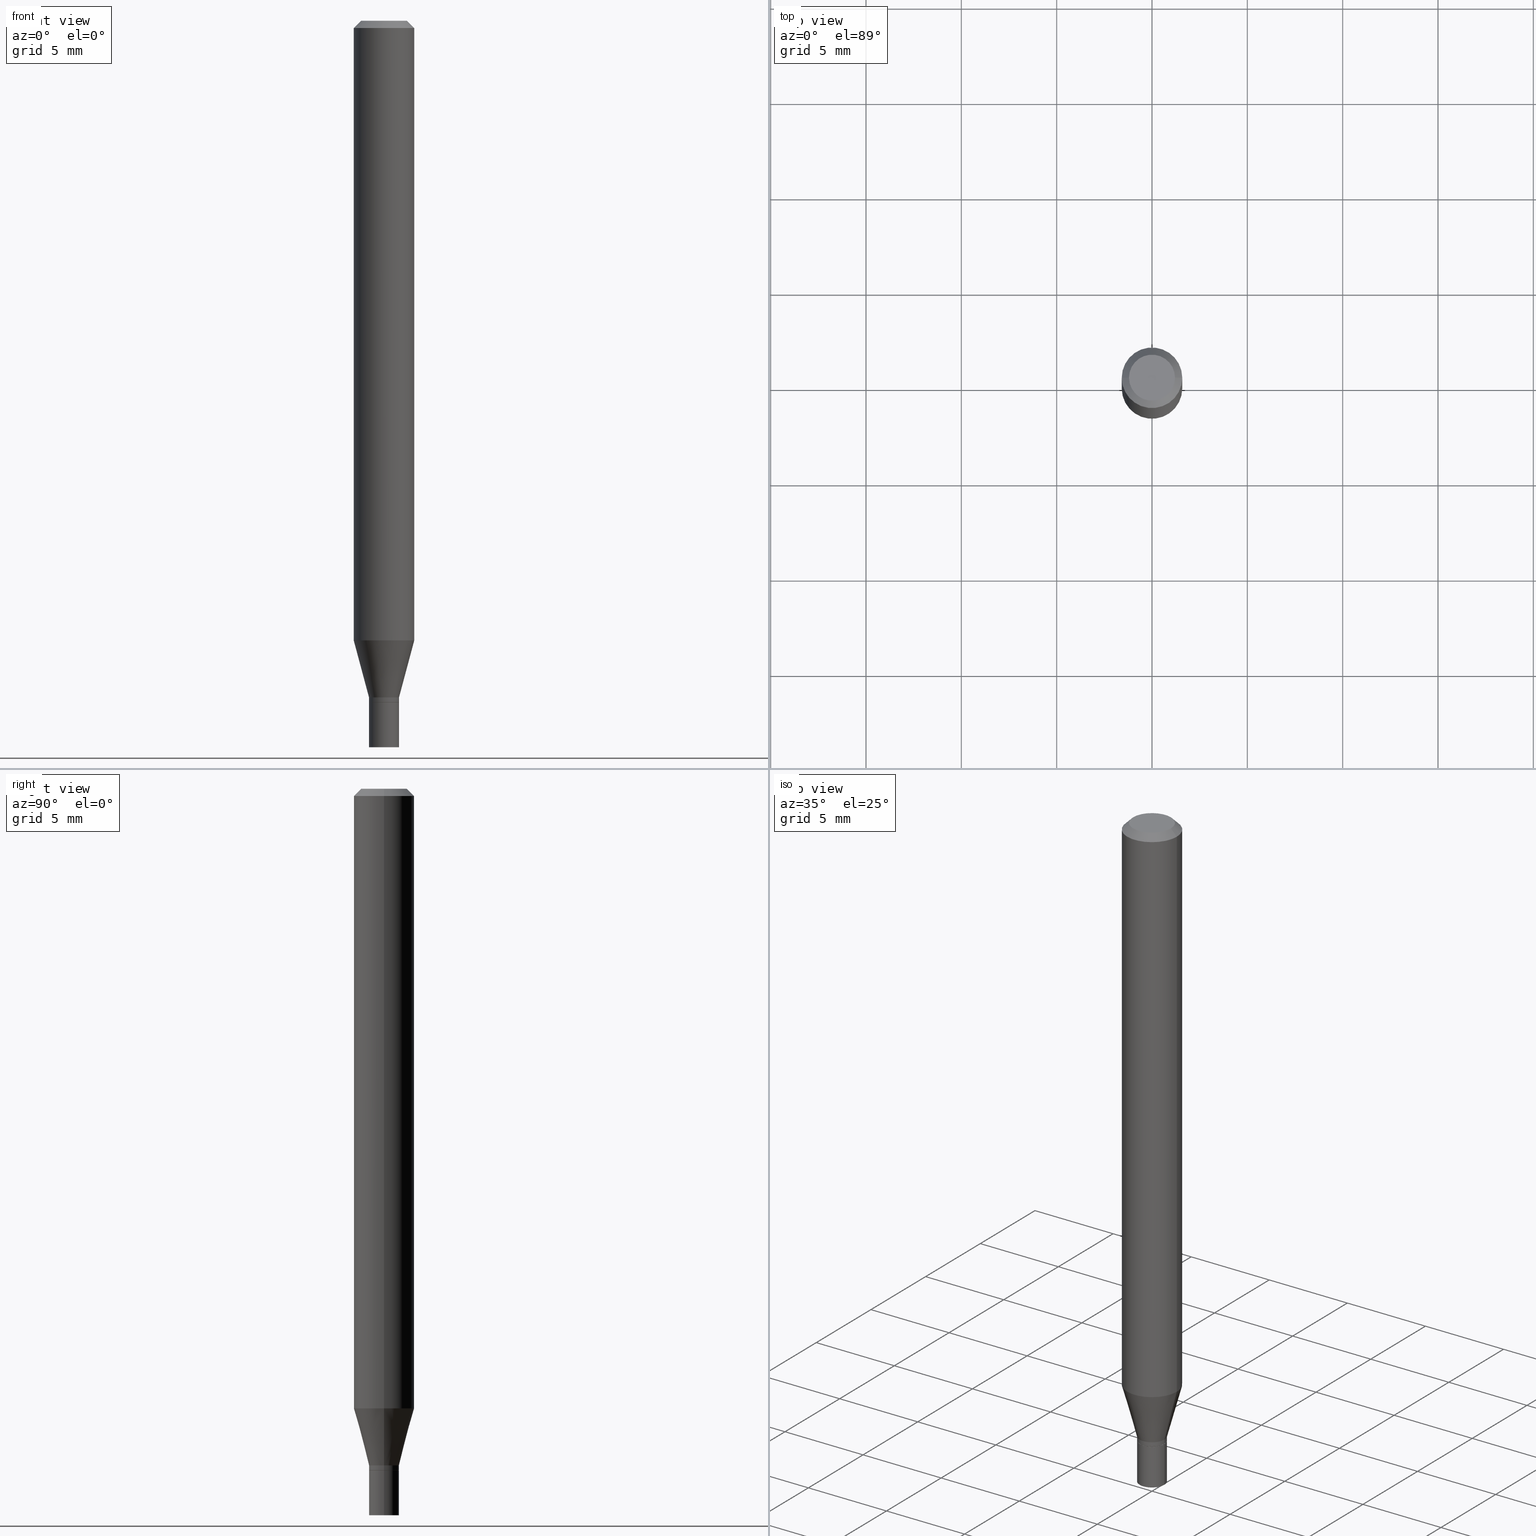
[diagram: canonical four-view strip — front | top / right | iso, engineering-drawing reading convention]
A machine part, canonical four-view strip (front | top / right | iso — engineering-drawing reading convention). The complete STEP part file that produces these views, byte-faithful:
ISO-10303-21;
HEADER;
FILE_DESCRIPTION (( 'STEP AP203' ),
    '1' );
FILE_NAME ('00357.STEP',
    '2024-03-19T21:02:44',
    ( '' ),
    ( '' ),
    'SwSTEP 2.0',
    'SolidWorks 2023',
    '' );
FILE_SCHEMA (( 'CONFIG_CONTROL_DESIGN' ));
ENDSEC;

DATA;
#1 = DIRECTION ( 'NONE',  ( 1.000000000000000000, -6.982962677686270655E-15, 0.000000000000000000 ) ) ;
#2 = CIRCLE ( 'NONE', #55, 0.03099999999999999978 ) ;
#3 = CIRCLE ( 'NONE', #168, 0.03099999999999992345 ) ;
#4 = CARTESIAN_POINT ( 'NONE',  ( 0.03049999999999999586, -5.125494605421736426E-15, -1.407000000000000028 ) ) ;
#5 = CARTESIAN_POINT ( 'NONE',  ( 0.000000000000000000, 0.000000000000000000, 0.000000000000000000 ) ) ;
#6 = ORIENTED_EDGE ( 'NONE', *, *, #276, .F. ) ;
#7 = DIRECTION ( 'NONE',  ( 1.000000000000000000, -6.982962677686265922E-15, 4.876176775795935793E-29 ) ) ;
#8 = DIRECTION ( 'NONE',  ( 1.000000000000000000, -6.982962677686262766E-15, 0.000000000000000000 ) ) ;
#9 = LOCAL_TIME ( 17, 2, 44.00000000000000000, #199 ) ;
#10 = DATE_AND_TIME ( #306, #66 ) ;
#11 = EDGE_LOOP ( 'NONE', ( #355, #203, #24, #36 ) ) ;
#12 = EDGE_CURVE ( 'NONE', #307, #347, #278, .T. ) ;
#13 = CARTESIAN_POINT ( 'NONE',  ( 0.03049999999999999586, -5.125494605421736426E-15, -1.407000000000000028 ) ) ;
#14 = PERSON_AND_ORGANIZATION_ROLE ( 'design_owner' ) ;
#15 = EDGE_LOOP ( 'NONE', ( #125, #161 ) ) ;
#16 = CYLINDRICAL_SURFACE ( 'NONE', #321, 0.03099999999999999978 ) ;
#17 = CALENDAR_DATE ( 2024, 19, 3 ) ;
#18 = VECTOR ( 'NONE', #175, 39.37007874015748143 ) ;
#19 = ORIENTED_EDGE ( 'NONE', *, *, #34, .F. ) ;
#20 = CIRCLE ( 'NONE', #230, 0.03049999999999999586 ) ;
#21 = APPROVAL_ROLE ( '' ) ;
#22 = PRODUCT_RELATED_PRODUCT_CATEGORY ( 'detail', '', ( #314 ) ) ;
#23 = DIRECTION ( 'NONE',  ( -2.445468806185136597E-29, 3.491481338843145583E-15, 1.000000000000000000 ) ) ;
#24 = ORIENTED_EDGE ( 'NONE', *, *, #367, .F. ) ;
#25 = LINE ( 'NONE', #353, #18 ) ;
#26 = PERSON ( 'UNSPECIFIED', 'UNSPECIFIED', 'UNSPECIFIED', ('UNSPECIFIED'), ('UNSPECIFIED'), ('UNSPECIFIED') ) ;
#27 = CIRCLE ( 'NONE', #91, 0.06250000000000000000 ) ;
#28 = AXIS2_PLACEMENT_3D ( 'NONE', #260, #403, #8 ) ;
#29 = EDGE_CURVE ( 'NONE', #347, #369, #102, .T. ) ;
#30 = APPLICATION_CONTEXT ( 'configuration controlled 3d designs of mechanical parts and assemblies' ) ;
#31 = FACE_OUTER_BOUND ( 'NONE', #265, .T. ) ;
#32 = CARTESIAN_POINT ( 'NONE',  ( 3.440774610302487541E-29, -4.912514243752305891E-15, -1.407000000000000028 ) ) ;
#33 = DIRECTION ( 'NONE',  ( -0.2588190451025213501, 5.211531920934551042E-15, 0.9659258262890682012 ) ) ;
#34 = EDGE_CURVE ( 'NONE', #183, #392, #210, .T. ) ;
#35 = EDGE_CURVE ( 'NONE', #371, #223, #25, .T. ) ;
#36 = ORIENTED_EDGE ( 'NONE', *, *, #53, .F. ) ;
#37 = AXIS2_PLACEMENT_3D ( 'NONE', #122, #41, #441 ) ;
#38 = LINE ( 'NONE', #4, #149 ) ;
#39 = DIRECTION ( 'NONE',  ( -2.445468806185136597E-29, 3.491481338843145583E-15, 1.000000000000000000 ) ) ;
#40 = EDGE_LOOP ( 'NONE', ( #19, #209, #61, #393 ) ) ;
#41 = DIRECTION ( 'NONE',  ( -2.445468806185136597E-29, 3.491481338843145583E-15, 1.000000000000000000 ) ) ;
#42 = VECTOR ( 'NONE', #322, 39.37007874015748143 ) ;
#43 = EDGE_CURVE ( 'NONE', #379, #392, #350, .T. ) ;
#44 = PERSON_AND_ORGANIZATION ( #26, #219 ) ;
#45 = AXIS2_PLACEMENT_3D ( 'NONE', #374, #263, #112 ) ;
#46 = DIRECTION ( 'NONE',  ( -1.000000000000000000, 6.982962677686265922E-15, -4.876176775795935793E-29 ) ) ;
#47 = VERTEX_POINT ( 'NONE', #458 ) ;
#48 = ORIENTED_EDGE ( 'NONE', *, *, #338, .T. ) ;
#49 = APPROVAL_ROLE ( '' ) ;
#50 = LINE ( 'NONE', #377, #364 ) ;
#51 = EDGE_LOOP ( 'NONE', ( #221, #166, #191, #48 ) ) ;
#52 = DIRECTION ( 'NONE',  ( 1.000000000000000000, -6.982962677686255667E-15, 0.000000000000000000 ) ) ;
#53 = EDGE_CURVE ( 'NONE', #379, #307, #318, .T. ) ;
#54 = ORIENTED_EDGE ( 'NONE', *, *, #338, .F. ) ;
#55 = AXIS2_PLACEMENT_3D ( 'NONE', #456, #360, #324 ) ;
#56 = DIRECTION ( 'NONE',  ( -2.445468806185136597E-29, 3.491481338843145583E-15, 1.000000000000000000 ) ) ;
#57 = PERSON_AND_ORGANIZATION ( #26, #219 ) ;
#58 = ORIENTED_EDGE ( 'NONE', *, *, #82, .T. ) ;
#59 = CARTESIAN_POINT ( 'NONE',  ( -0.03099999999999992345, -4.690500254997253923E-15, -1.406500000000000083 ) ) ;
#60 = CARTESIAN_POINT ( 'NONE',  ( 3.440774610302487541E-29, -4.912514243752305891E-15, -1.407000000000000028 ) ) ;
#61 = ORIENTED_EDGE ( 'NONE', *, *, #242, .T. ) ;
#62 = ORIENTED_EDGE ( 'NONE', *, *, #429, .F. ) ;
#63 = ORIENTED_EDGE ( 'NONE', *, *, #43, .F. ) ;
#64 = ADVANCED_FACE ( 'NONE', ( #291 ), #206, .T. ) ;
#65 = CONICAL_SURFACE ( 'NONE', #119, 0.06250000000000000000, 0.7853981633974401744 ) ;
#66 = LOCAL_TIME ( 17, 2, 44.00000000000000000, #453 ) ;
#67 = APPLICATION_PROTOCOL_DEFINITION ( 'international standard', 'config_control_design', 1994, #270 ) ;
#68 = DIRECTION ( 'NONE',  ( -2.445468806185136597E-29, 3.491481338843145583E-15, 1.000000000000000000 ) ) ;
#69 = CARTESIAN_POINT ( 'NONE',  ( 3.576687321579069994E-29, -5.368277968210015545E-15, -1.500000000000000222 ) ) ;
#70 = AXIS2_PLACEMENT_3D ( 'NONE', #356, #23, #460 ) ;
#71 = CIRCLE ( 'NONE', #212, 0.06250000000000000000 ) ;
#72 = DIRECTION ( 'NONE',  ( 1.000000000000000000, -6.982962677686266711E-15, 4.876176775795935793E-29 ) ) ;
#73 = APPROVAL ( #414, 'UNSPECIFIED' ) ;
#74 = FACE_OUTER_BOUND ( 'NONE', #15, .T. ) ;
#75 = EDGE_LOOP ( 'NONE', ( #389, #401, #335, #6 ) ) ;
#76 = DIRECTION ( 'NONE',  ( -2.445468806185136597E-29, 3.491481338843145583E-15, 1.000000000000000000 ) ) ;
#77 = CLOSED_SHELL ( 'NONE', ( #320, #64, #284, #178, #247, #398, #256, #213, #88, #442, #207, #465 ) ) ;
#78 = CIRCLE ( 'NONE', #396, 0.03099999999999992345 ) ;
#79 = CC_DESIGN_SECURITY_CLASSIFICATION ( #342, ( #445 ) ) ;
#80 = DIRECTION ( 'NONE',  ( -1.000000000000000000, 6.982962677686266711E-15, 0.000000000000000000 ) ) ;
#81 = DIRECTION ( 'NONE',  ( 1.000000000000000000, -6.982962677686255667E-15, 0.000000000000000000 ) ) ;
#82 = EDGE_CURVE ( 'NONE', #425, #183, #99, .T. ) ;
#83 = ORIENTED_EDGE ( 'NONE', *, *, #12, .T. ) ;
#84 = DIRECTION ( 'NONE',  ( 2.445468806185136597E-29, -3.491481338843145583E-15, -1.000000000000000000 ) ) ;
#85 = CARTESIAN_POINT ( 'NONE',  ( 0.03099999999999992345, -5.094071273372148573E-15, -1.397000000000000242 ) ) ;
#86 = ORIENTED_EDGE ( 'NONE', *, *, #132, .F. ) ;
#87 = CARTESIAN_POINT ( 'NONE',  ( 0.06250000000000000000, -4.888073874380388472E-16, -0.01499999999999999944 ) ) ;
#88 = ADVANCED_FACE ( 'NONE', ( #74 ), #323, .F. ) ;
#89 = FACE_OUTER_BOUND ( 'NONE', #234, .T. ) ;
#90 = DATE_AND_TIME ( #17, #351 ) ;
#91 = AXIS2_PLACEMENT_3D ( 'NONE', #426, #101, #461 ) ;
#92 = DIRECTION ( 'NONE',  ( -2.445468806185136597E-29, 3.491481338843145583E-15, 1.000000000000000000 ) ) ;
#93 = CIRCLE ( 'NONE', #158, 0.03099999999999999978 ) ;
#94 = PERSON_AND_ORGANIZATION_ROLE ( 'creator' ) ;
#95 = LENGTH_MEASURE_WITH_UNIT ( LENGTH_MEASURE( 0.02539999999999999897 ), #317 );
#96 = CC_DESIGN_DATE_AND_TIME_ASSIGNMENT ( #192, #329, ( #342 ) ) ;
#97 = AXIS2_PLACEMENT_3D ( 'NONE', #69, #133, #400 ) ;
#98 = CARTESIAN_POINT ( 'NONE',  ( 3.440774610302487541E-29, -4.912514243752305891E-15, -1.407000000000000028 ) ) ;
#99 = CIRCLE ( 'NONE', #462, 0.03049999999999999586 ) ;
#100 = VECTOR ( 'NONE', #150, 39.37007874015748854 ) ;
#101 = DIRECTION ( 'NONE',  ( -2.445468806185136597E-29, 3.491481338843145583E-15, 1.000000000000000000 ) ) ;
#102 = LINE ( 'NONE', #326, #423 ) ;
#103 = DIRECTION ( 'NONE',  ( -2.445468806185136597E-29, 3.491481338843145583E-15, 1.000000000000000000 ) ) ;
#104 = CONICAL_SURFACE ( 'NONE', #457, 0.06250000000000000000, 0.7853981633974401744 ) ;
#105 = LINE ( 'NONE', #137, #313 ) ;
#106 = UNCERTAINTY_MEASURE_WITH_UNIT (LENGTH_MEASURE( 1.000000000000000082E-05 ), #277, 'distance_accuracy_value', 'NONE');
#107 = ADVANCED_BREP_SHAPE_REPRESENTATION ( '00357', ( #138, #446, #182 ), #424 ) ;
#108 = ORIENTED_EDGE ( 'NONE', *, *, #132, .T. ) ;
#109 = CARTESIAN_POINT ( 'NONE',  ( -0.03049999999999999586, -4.695798709345474748E-15, -1.407000000000000028 ) ) ;
#110 = CARTESIAN_POINT ( 'NONE',  ( 0.06250000000000000000, -4.903577446586667063E-15, -1.279440399561580399 ) ) ;
#111 = AXIS2_PLACEMENT_3D ( 'NONE', #32, #358, #135 ) ;
#112 = DIRECTION ( 'NONE',  ( 1.000000000000000000, -6.982962677686266711E-15, 4.876176775795935232E-29 ) ) ;
#113 = CC_DESIGN_PERSON_AND_ORGANIZATION_ASSIGNMENT ( #208, #280, ( #153 ) ) ;
#114 = VERTEX_POINT ( 'NONE', #176 ) ;
#115 = DIRECTION ( 'NONE',  ( 0.7071067811865416886, -7.319954787623233957E-15, -0.7071067811865531239 ) ) ;
#116 = CARTESIAN_POINT ( 'NONE',  ( -0.03099999999999999978, -4.854599877922879992E-15, -1.407000000000000028 ) ) ;
#117 = ORIENTED_EDGE ( 'NONE', *, *, #145, .T. ) ;
#118 = CC_DESIGN_PERSON_AND_ORGANIZATION_ASSIGNMENT ( #449, #94, ( #445 ) ) ;
#119 = AXIS2_PLACEMENT_3D ( 'NONE', #269, #84, #80 ) ;
#120 = CIRCLE ( 'NONE', #141, 0.03099999999999992345 ) ;
#121 = EDGE_CURVE ( 'NONE', #372, #371, #444, .T. ) ;
#122 = CARTESIAN_POINT ( 'NONE',  ( 3.440774610302487541E-29, -4.912514243752305891E-15, -1.407000000000000028 ) ) ;
#123 = DIRECTION ( 'NONE',  ( 1.000000000000000000, -6.982962677686255667E-15, 0.000000000000000000 ) ) ;
#124 = MECHANICAL_CONTEXT ( 'NONE', #270, 'mechanical' ) ;
#125 = ORIENTED_EDGE ( 'NONE', *, *, #165, .T. ) ;
#126 = VERTEX_POINT ( 'NONE', #427 ) ;
#127 = DIRECTION ( 'NONE',  ( 1.000000000000000000, -6.982962677686267499E-15, 4.852736867747366768E-29 ) ) ;
#128 = EDGE_LOOP ( 'NONE', ( #266, #418 ) ) ;
#129 = VECTOR ( 'NONE', #164, 39.37007874015748143 ) ;
#130 = EDGE_CURVE ( 'NONE', #312, #223, #2, .T. ) ;
#131 = EDGE_CURVE ( 'NONE', #126, #47, #105, .T. ) ;
#132 = EDGE_CURVE ( 'NONE', #369, #432, #241, .T. ) ;
#133 = DIRECTION ( 'NONE',  ( -2.438088387897960049E-29, 3.491481338843145188E-15, 1.000000000000000000 ) ) ;
#134 = APPROVAL_PERSON_ORGANIZATION ( #447, #194, #49 ) ;
#135 = DIRECTION ( 'NONE',  ( 1.000000000000000000, -6.982962677686254089E-15, 0.000000000000000000 ) ) ;
#136 = CARTESIAN_POINT ( 'NONE',  ( 0.000000000000000000, 0.000000000000000000, 0.000000000000000000 ) ) ;
#137 = CARTESIAN_POINT ( 'NONE',  ( -0.03099999999999992345, -4.657331182278244567E-15, -1.397000000000000242 ) ) ;
#138 = MANIFOLD_SOLID_BREP ( 'Body-Move/Copy2[1]', #325 ) ;
#139 = AXIS2_PLACEMENT_3D ( 'NONE', #293, #407, #46 ) ;
#140 = ADVANCED_FACE ( 'NONE', ( #31 ), #251, .F. ) ;
#141 = AXIS2_PLACEMENT_3D ( 'NONE', #152, #300, #81 ) ;
#142 = EDGE_LOOP ( 'NONE', ( #225, #117, #408, #54 ) ) ;
#143 = DIRECTION ( 'NONE',  ( 1.000000000000000000, -6.982962677686266711E-15, 0.000000000000000000 ) ) ;
#144 = DIRECTION ( 'NONE',  ( 1.000000000000000000, -6.982962677686255667E-15, 0.000000000000000000 ) ) ;
#145 = EDGE_CURVE ( 'NONE', #47, #347, #27, .T. ) ;
#146 = LINE ( 'NONE', #330, #100 ) ;
#147 = CIRCLE ( 'NONE', #70, 0.04749999999999999362 ) ;
#148 = ORIENTED_EDGE ( 'NONE', *, *, #121, .F. ) ;
#149 = VECTOR ( 'NONE', #189, 39.37007874015748143 ) ;
#150 = DIRECTION ( 'NONE',  ( -0.7071067811865416886, 2.468850131082196713E-15, -0.7071067811865531239 ) ) ;
#151 = ORIENTED_EDGE ( 'NONE', *, *, #367, .T. ) ;
#152 = CARTESIAN_POINT ( 'NONE',  ( 3.416319922240636557E-29, -4.877599430363875031E-15, -1.397000000000000242 ) ) ;
#153 = PRODUCT_DEFINITION ( 'UNKNOWN', '', #445, #404 ) ;
#154 = EDGE_LOOP ( 'NONE', ( #255, #240, #173, #281 ) ) ;
#155 = CARTESIAN_POINT ( 'NONE',  ( 0.03099999999999999978, -5.128986086760580222E-15, -1.407000000000000028 ) ) ;
#156 = VECTOR ( 'NONE', #394, 39.37007874015747433 ) ;
#157 = CIRCLE ( 'NONE', #253, 0.04749999999999999362 ) ;
#158 = AXIS2_PLACEMENT_3D ( 'NONE', #443, #39, #1 ) ;
#159 = DIRECTION ( 'NONE',  ( -2.445468806185136597E-29, 3.491481338843145583E-15, 1.000000000000000000 ) ) ;
#160 = DATE_TIME_ROLE ( 'creation_date' ) ;
#161 = ORIENTED_EDGE ( 'NONE', *, *, #421, .T. ) ;
#162 = DIRECTION ( 'NONE',  ( -2.445468806185136877E-29, 3.491481338843145188E-15, 1.000000000000000000 ) ) ;
#163 = APPROVAL_ROLE ( '' ) ;
#164 = DIRECTION ( 'NONE',  ( -2.445468806185136877E-29, 3.491481338843145188E-15, 1.000000000000000000 ) ) ;
#165 = EDGE_CURVE ( 'NONE', #114, #227, #147, .T. ) ;
#166 = ORIENTED_EDGE ( 'NONE', *, *, #165, .F. ) ;
#167 = CONICAL_SURFACE ( 'NONE', #430, 0.03049999999999999586, 0.7853981633974739252 ) ;
#168 = AXIS2_PLACEMENT_3D ( 'NONE', #305, #159, #382 ) ;
#169 = CYLINDRICAL_SURFACE ( 'NONE', #385, 0.03099999999999992345 ) ;
#170 = EDGE_LOOP ( 'NONE', ( #365, #216, #108, #341 ) ) ;
#171 = ORIENTED_EDGE ( 'NONE', *, *, #35, .T. ) ;
#172 = DIRECTION ( 'NONE',  ( 1.000000000000000000, 0.000000000000000000, 0.000000000000000000 ) ) ;
#173 = ORIENTED_EDGE ( 'NONE', *, *, #290, .F. ) ;
#174 = CC_DESIGN_PERSON_AND_ORGANIZATION_ASSIGNMENT ( #309, #304, ( #445 ) ) ;
#175 = DIRECTION ( 'NONE',  ( -2.445468806185136877E-29, 3.491481338843145188E-15, 1.000000000000000000 ) ) ;
#176 = CARTESIAN_POINT ( 'NONE',  ( -0.04749999999999999362, 3.578768372314215436E-16, 2.469815280770035755E-16 ) ) ;
#177 = CYLINDRICAL_SURFACE ( 'NONE', #218, 0.06250000000000000000 ) ;
#178 = ADVANCED_FACE ( 'NONE', ( #397 ), #177, .T. ) ;
#179 = DIRECTION ( 'NONE',  ( -2.445468806185136877E-29, 3.491481338843145188E-15, 1.000000000000000000 ) ) ;
#180 = DIRECTION ( 'NONE',  ( 1.000000000000000000, -6.982962677686255667E-15, 0.000000000000000000 ) ) ;
#181 = AXIS2_PLACEMENT_3D ( 'NONE', #359, #395, #180 ) ;
#182 = AXIS2_PLACEMENT_3D ( 'NONE', #420, #246, #172 ) ;
#183 = VERTEX_POINT ( 'NONE', #433 ) ;
#184 = FACE_OUTER_BOUND ( 'NONE', #154, .T. ) ;
#185 = DIRECTION ( 'NONE',  ( 1.000000000000000000, -6.982962677686266711E-15, 4.876176775795935793E-29 ) ) ;
#186 = DIRECTION ( 'NONE',  ( -2.445468806185136597E-29, 3.491481338843145583E-15, 1.000000000000000000 ) ) ;
#187 = VECTOR ( 'NONE', #410, 39.37007874015748143 ) ;
#188 = COORDINATED_UNIVERSAL_TIME_OFFSET ( 5, 0, .BEHIND. ) ;
#189 = DIRECTION ( 'NONE',  ( 0.7071067811865656694, -2.468850131082446387E-15, 0.7071067811865294761 ) ) ;
#190 = ORIENTED_EDGE ( 'NONE', *, *, #131, .F. ) ;
#191 = ORIENTED_EDGE ( 'NONE', *, *, #298, .T. ) ;
#192 = DATE_AND_TIME ( #296, #294 ) ;
#193 = FACE_OUTER_BOUND ( 'NONE', #142, .T. ) ;
#194 = APPROVAL ( #232, 'UNSPECIFIED' ) ;
#195 = PLANE ( 'NONE',  #391 ) ;
#196 = ORIENTED_EDGE ( 'NONE', *, *, #130, .F. ) ;
#197 = LOCAL_TIME ( 17, 2, 44.00000000000000000, #376 ) ;
#198 = CARTESIAN_POINT ( 'NONE',  ( -0.03099999999999992345, 2.202682480856305137E-16, -1.524869877979016933E-30 ) ) ;
#199 = COORDINATED_UNIVERSAL_TIME_OFFSET ( 5, 0, .BEHIND. ) ;
#200 = CC_DESIGN_PERSON_AND_ORGANIZATION_ASSIGNMENT ( #315, #14, ( #314 ) ) ;
#201 = DIRECTION ( 'NONE',  ( -2.445468806185136597E-29, 3.491481338843145583E-15, 1.000000000000000000 ) ) ;
#202 = DIRECTION ( 'NONE',  ( -2.445468806185136597E-29, 3.491481338843145583E-15, 1.000000000000000000 ) ) ;
#203 = ORIENTED_EDGE ( 'NONE', *, *, #406, .T. ) ;
#204 = PERSON_AND_ORGANIZATION ( #26, #219 ) ;
#205 = ORIENTED_EDGE ( 'NONE', *, *, #276, .T. ) ;
#206 = CONICAL_SURFACE ( 'NONE', #111, 0.03049999999999999586, 0.7853981633974739252 ) ;
#207 = ADVANCED_FACE ( 'NONE', ( #287 ), #167, .T. ) ;
#208 = PERSON_AND_ORGANIZATION ( #26, #219 ) ;
#209 = ORIENTED_EDGE ( 'NONE', *, *, #459, .T. ) ;
#210 = LINE ( 'NONE', #109, #42 ) ;
#211 = DIRECTION ( 'NONE',  ( -2.445468806185136877E-29, 3.491481338843145188E-15, 1.000000000000000000 ) ) ;
#212 = AXIS2_PLACEMENT_3D ( 'NONE', #363, #466, #292 ) ;
#213 = ADVANCED_FACE ( 'NONE', ( #334 ), #65, .T. ) ;
#214 = CARTESIAN_POINT ( 'NONE',  ( 0.03099999999999992345, -5.094071273372148573E-15, -1.397000000000000242 ) ) ;
#215 = CARTESIAN_POINT ( 'NONE',  ( 0.03099999999999992345, -2.164718430082737148E-16, 1.511614800496736305E-30 ) ) ;
#216 = ORIENTED_EDGE ( 'NONE', *, *, #316, .T. ) ;
#217 = DIRECTION ( 'NONE',  ( 1.000000000000000000, -6.982962677686254089E-15, 0.000000000000000000 ) ) ;
#218 = AXIS2_PLACEMENT_3D ( 'NONE', #136, #68, #72 ) ;
#219 = ORGANIZATION ( 'UNSPECIFIED', 'UNSPECIFIED', '' ) ;
#220 = CYLINDRICAL_SURFACE ( 'NONE', #45, 0.03099999999999999978 ) ;
#221 = ORIENTED_EDGE ( 'NONE', *, *, #316, .F. ) ;
#222 = CARTESIAN_POINT ( 'NONE',  ( 3.416319922240636557E-29, -4.877599430363875031E-15, -1.397000000000000242 ) ) ;
#223 = VERTEX_POINT ( 'NONE', #155 ) ;
#224 = CALENDAR_DATE ( 2024, 19, 3 ) ;
#225 = ORIENTED_EDGE ( 'NONE', *, *, #267, .F. ) ;
#226 = CARTESIAN_POINT ( 'NONE',  ( 0.04749999999999999362, -4.035134999187574186E-16, 2.469815280770085059E-16 ) ) ;
#227 = VERTEX_POINT ( 'NONE', #226 ) ;
#228 = EDGE_LOOP ( 'NONE', ( #373, #299, #86, #259 ) ) ;
#229 = ORIENTED_EDGE ( 'NONE', *, *, #145, .F. ) ;
#230 = AXIS2_PLACEMENT_3D ( 'NONE', #98, #352, #387 ) ;
#231 = ADVANCED_FACE ( 'NONE', ( #328 ), #301, .F. ) ;
#232 = APPROVAL_STATUS ( 'not_yet_approved' ) ;
#233 = DIRECTION ( 'NONE',  ( 2.445468806185136597E-29, -3.491481338843145583E-15, -1.000000000000000000 ) ) ;
#234 = EDGE_LOOP ( 'NONE', ( #62, #339, #171, #196 ) ) ;
#235 = CARTESIAN_POINT ( 'NONE',  ( -0.03099999999999999978, -4.854599877922879992E-15, -1.500000000000000222 ) ) ;
#236 = SHAPE_DEFINITION_REPRESENTATION ( #388, #107 ) ;
#237 = CARTESIAN_POINT ( 'NONE',  ( 0.000000000000000000, 0.000000000000000000, 0.000000000000000000 ) ) ;
#238 = APPLICATION_PROTOCOL_DEFINITION ( 'international standard', 'config_control_design', 1994, #30 ) ;
#239 = ADVANCED_FACE ( 'NONE', ( #184 ), #220, .T. ) ;
#240 = ORIENTED_EDGE ( 'NONE', *, *, #429, .T. ) ;
#241 = CIRCLE ( 'NONE', #319, 0.06250000000000000000 ) ;
#242 = EDGE_CURVE ( 'NONE', #425, #379, #38, .T. ) ;
#243 = APPROVAL_PERSON_ORGANIZATION ( #204, #289, #163 ) ;
#244 = LINE ( 'NONE', #198, #129 ) ;
#245 =( NAMED_UNIT ( * ) SI_UNIT ( $, .STERADIAN. ) SOLID_ANGLE_UNIT ( ) );
#246 = DIRECTION ( 'NONE',  ( 0.000000000000000000, 0.000000000000000000, 1.000000000000000000 ) ) ;
#247 = ADVANCED_FACE ( 'NONE', ( #438 ), #357, .T. ) ;
#248 = DATE_AND_TIME ( #344, #9 ) ;
#249 = DIRECTION ( 'NONE',  ( 1.000000000000000000, -6.982962677686265922E-15, 4.876176775795935793E-29 ) ) ;
#250 = CARTESIAN_POINT ( 'NONE',  ( 3.668203209277704895E-29, -5.237222008264718177E-15, -1.500000000000000222 ) ) ;
#251 = PLANE ( 'NONE',  #97 ) ;
#252 = CARTESIAN_POINT ( 'NONE',  ( 3.668203209277705088E-31, -5.237222008264718399E-17, -0.01499999999999999944 ) ) ;
#253 = AXIS2_PLACEMENT_3D ( 'NONE', #343, #275, #127 ) ;
#254 = DIRECTION ( 'NONE',  ( -2.445468806185136597E-29, 3.491481338843145583E-15, 1.000000000000000000 ) ) ;
#255 = ORIENTED_EDGE ( 'NONE', *, *, #268, .T. ) ;
#256 = ADVANCED_FACE ( 'NONE', ( #193 ), #366, .T. ) ;
#257 = DIRECTION ( 'NONE',  ( 1.000000000000000000, -6.982962677686270655E-15, 0.000000000000000000 ) ) ;
#258 = DIMENSIONAL_EXPONENTS ( 1.000000000000000000, 0.000000000000000000, 0.000000000000000000, 0.000000000000000000, 0.000000000000000000, 0.000000000000000000, 0.000000000000000000 ) ;
#259 = ORIENTED_EDGE ( 'NONE', *, *, #29, .F. ) ;
#260 = CARTESIAN_POINT ( 'NONE',  ( 3.128831586500892254E-29, -4.467142279231276182E-15, -1.279440399561580399 ) ) ;
#261 = AXIS2_PLACEMENT_3D ( 'NONE', #283, #286, #428 ) ;
#262 = CC_DESIGN_APPROVAL ( #194, ( #342 ) ) ;
#263 = DIRECTION ( 'NONE',  ( -2.445468806185136597E-29, 3.491481338843145583E-15, 1.000000000000000000 ) ) ;
#264 = CYLINDRICAL_SURFACE ( 'NONE', #375, 0.03099999999999992345 ) ;
#265 = EDGE_LOOP ( 'NONE', ( #295, #148 ) ) ;
#266 = ORIENTED_EDGE ( 'NONE', *, *, #82, .F. ) ;
#267 = EDGE_CURVE ( 'NONE', #47, #432, #439, .T. ) ;
#268 = EDGE_CURVE ( 'NONE', #371, #372, #93, .T. ) ;
#269 = CARTESIAN_POINT ( 'NONE',  ( 3.668203209277705088E-31, -5.237222008264718399E-17, -0.01499999999999999944 ) ) ;
#270 = APPLICATION_CONTEXT ( 'configuration controlled 3d designs of mechanical parts and assemblies' ) ;
#271 = VECTOR ( 'NONE', #162, 39.37007874015748143 ) ;
#272 = FACE_OUTER_BOUND ( 'NONE', #11, .T. ) ;
#273 = ORIENTED_EDGE ( 'NONE', *, *, #131, .T. ) ;
#274 = PERSON_AND_ORGANIZATION_ROLE ( 'classification_officer' ) ;
#275 = DIRECTION ( 'NONE',  ( -2.445468806185136597E-29, 3.491481338843145583E-15, 1.000000000000000000 ) ) ;
#276 = EDGE_CURVE ( 'NONE', #126, #307, #120, .T. ) ;
#277 =( CONVERSION_BASED_UNIT ( 'INCH', #95 ) LENGTH_UNIT ( ) NAMED_UNIT ( #258 ) );
#278 = LINE ( 'NONE', #214, #156 ) ;
#279 = LINE ( 'NONE', #380, #271 ) ;
#280 = PERSON_AND_ORGANIZATION_ROLE ( 'creator' ) ;
#281 = ORIENTED_EDGE ( 'NONE', *, *, #35, .F. ) ;
#282 = CC_DESIGN_APPROVAL ( #289, ( #445 ) ) ;
#283 = CARTESIAN_POINT ( 'NONE',  ( 3.316907271900976096E-16, 0.04749999999999999362, -4.235459955654642541E-17 ) ) ;
#284 = ADVANCED_FACE ( 'NONE', ( #297 ), #104, .T. ) ;
#285 = DIRECTION ( 'NONE',  ( 1.000000000000000000, -6.982962677686254089E-15, 0.000000000000000000 ) ) ;
#286 = DIRECTION ( 'NONE',  ( 2.438088387897960049E-29, -3.491481338843145188E-15, -1.000000000000000000 ) ) ;
#287 = FACE_OUTER_BOUND ( 'NONE', #40, .T. ) ;
#288 = CONICAL_SURFACE ( 'NONE', #362, 0.03099999999999992345, 0.2617993877991500740 ) ;
#289 = APPROVAL ( #454, 'UNSPECIFIED' ) ;
#290 = EDGE_CURVE ( 'NONE', #223, #312, #331, .T. ) ;
#291 = FACE_OUTER_BOUND ( 'NONE', #368, .T. ) ;
#292 = DIRECTION ( 'NONE',  ( 1.000000000000000000, -6.982962677686266711E-15, 0.000000000000000000 ) ) ;
#293 = CARTESIAN_POINT ( 'NONE',  ( 2.164718430083086219E-16, 0.03099999999999508704, -1.407000000000000028 ) ) ;
#294 = LOCAL_TIME ( 17, 2, 44.00000000000000000, #188 ) ;
#295 = ORIENTED_EDGE ( 'NONE', *, *, #268, .F. ) ;
#296 = CALENDAR_DATE ( 2024, 19, 3 ) ;
#297 = FACE_OUTER_BOUND ( 'NONE', #170, .T. ) ;
#298 = EDGE_CURVE ( 'NONE', #114, #432, #146, .T. ) ;
#299 = ORIENTED_EDGE ( 'NONE', *, *, #267, .T. ) ;
#300 = DIRECTION ( 'NONE',  ( -2.445468806185136597E-29, 3.491481338843145583E-15, 1.000000000000000000 ) ) ;
#301 = PLANE ( 'NONE',  #139 ) ;
#302 = AXIS2_PLACEMENT_3D ( 'NONE', #250, #103, #257 ) ;
#303 = AXIS2_PLACEMENT_3D ( 'NONE', #5, #405, #185 ) ;
#304 = PERSON_AND_ORGANIZATION_ROLE ( 'design_supplier' ) ;
#305 = CARTESIAN_POINT ( 'NONE',  ( 3.416319922240636557E-29, -4.877599430363875031E-15, -1.397000000000000242 ) ) ;
#306 = CALENDAR_DATE ( 2024, 19, 3 ) ;
#307 = VERTEX_POINT ( 'NONE', #85 ) ;
#308 = CARTESIAN_POINT ( 'NONE',  ( 3.439551875899394740E-29, -4.910768503082885176E-15, -1.406500000000000083 ) ) ;
#309 = PERSON_AND_ORGANIZATION ( #26, #219 ) ;
#310 = EDGE_LOOP ( 'NONE', ( #190, #205, #83, #229 ) ) ;
#311 = CARTESIAN_POINT ( 'NONE',  ( 0.000000000000000000, 0.000000000000000000, 0.000000000000000000 ) ) ;
#312 = VERTEX_POINT ( 'NONE', #116 ) ;
#313 = VECTOR ( 'NONE', #33, 39.37007874015747433 ) ;
#314 = PRODUCT ( '00357', '00357', '', ( #124 ) ) ;
#315 = PERSON_AND_ORGANIZATION ( #26, #219 ) ;
#316 = EDGE_CURVE ( 'NONE', #227, #369, #50, .T. ) ;
#317 =( LENGTH_UNIT ( ) NAMED_UNIT ( * ) SI_UNIT ( $, .METRE. ) );
#318 = LINE ( 'NONE', #215, #411 ) ;
#319 = AXIS2_PLACEMENT_3D ( 'NONE', #252, #76, #143 ) ;
#320 = ADVANCED_FACE ( 'NONE', ( #272 ), #264, .T. ) ;
#321 = AXIS2_PLACEMENT_3D ( 'NONE', #237, #201, #386 ) ;
#322 = DIRECTION ( 'NONE',  ( -0.7071067811865656694, 7.493145998870420424E-15, 0.7071067811865294761 ) ) ;
#323 = PLANE ( 'NONE',  #261 ) ;
#324 = DIRECTION ( 'NONE',  ( 1.000000000000000000, -6.982962677686270655E-15, 0.000000000000000000 ) ) ;
#325 = CLOSED_SHELL ( 'NONE', ( #239, #140, #417, #231 ) ) ;
#326 = CARTESIAN_POINT ( 'NONE',  ( 0.06250000000000000000, -4.364351673553916694E-16, 3.047610484872459871E-30 ) ) ;
#327 = CARTESIAN_POINT ( 'NONE',  ( 3.668203209277705088E-31, -5.237222008264718399E-17, -0.01499999999999999944 ) ) ;
#328 = FACE_OUTER_BOUND ( 'NONE', #409, .T. ) ;
#329 = DATE_TIME_ROLE ( 'classification_date' ) ;
#330 = CARTESIAN_POINT ( 'NONE',  ( -0.06250000000000000000, 3.840629472727444916E-16, -0.01499999999999999944 ) ) ;
#331 = CIRCLE ( 'NONE', #37, 0.03099999999999999978 ) ;
#332 = CC_DESIGN_PERSON_AND_ORGANIZATION_ASSIGNMENT ( #44, #274, ( #342 ) ) ;
#333 = APPROVAL_DATE_TIME ( #336, #194 ) ;
#334 = FACE_OUTER_BOUND ( 'NONE', #51, .T. ) ;
#335 = ORIENTED_EDGE ( 'NONE', *, *, #53, .T. ) ;
#336 = DATE_AND_TIME ( #224, #197 ) ;
#337 = DIRECTION ( 'NONE',  ( -1.000000000000000000, 6.982962677686266711E-15, 0.000000000000000000 ) ) ;
#338 = EDGE_CURVE ( 'NONE', #432, #369, #71, .T. ) ;
#339 = ORIENTED_EDGE ( 'NONE', *, *, #121, .T. ) ;
#340 = FACE_OUTER_BOUND ( 'NONE', #128, .T. ) ;
#341 = ORIENTED_EDGE ( 'NONE', *, *, #298, .F. ) ;
#342 = SECURITY_CLASSIFICATION ( '', '', #381 ) ;
#343 = CARTESIAN_POINT ( 'NONE',  ( -6.039856226162565090E-45, 8.623313963198306787E-31, 2.469815280770059421E-16 ) ) ;
#344 = CALENDAR_DATE ( 2024, 19, 3 ) ;
#345 = CARTESIAN_POINT ( 'NONE',  ( -0.06250000000000000000, -1.815668039806898817E-15, -0.01499999999999999944 ) ) ;
#346 = DIRECTION ( 'NONE',  ( -2.438088387897960049E-29, 3.491481338843145188E-15, 1.000000000000000000 ) ) ;
#347 = VERTEX_POINT ( 'NONE', #110 ) ;
#348 = COORDINATED_UNIVERSAL_TIME_OFFSET ( 5, 0, .BEHIND. ) ;
#349 = ORIENTED_EDGE ( 'NONE', *, *, #242, .F. ) ;
#350 = CIRCLE ( 'NONE', #181, 0.03099999999999992345 ) ;
#351 = LOCAL_TIME ( 17, 2, 44.00000000000000000, #348 ) ;
#352 = DIRECTION ( 'NONE',  ( -2.445468806185136597E-29, 3.491481338843145583E-15, 1.000000000000000000 ) ) ;
#353 = CARTESIAN_POINT ( 'NONE',  ( 0.03099999999999999978, -2.164718430082742572E-16, 1.511614800496739984E-30 ) ) ;
#354 = EDGE_CURVE ( 'NONE', #347, #47, #402, .T. ) ;
#355 = ORIENTED_EDGE ( 'NONE', *, *, #43, .T. ) ;
#356 = CARTESIAN_POINT ( 'NONE',  ( -6.039856226162565090E-45, 8.623313963198306787E-31, 2.469815280770059421E-16 ) ) ;
#357 = CONICAL_SURFACE ( 'NONE', #419, 0.03099999999999992345, 0.2617993877991500740 ) ;
#358 = DIRECTION ( 'NONE',  ( -2.445468806185136597E-29, 3.491481338843145583E-15, 1.000000000000000000 ) ) ;
#359 = CARTESIAN_POINT ( 'NONE',  ( 3.439551875899394740E-29, -4.910768503082885176E-15, -1.406500000000000083 ) ) ;
#360 = DIRECTION ( 'NONE',  ( -2.445468806185136597E-29, 3.491481338843145583E-15, 1.000000000000000000 ) ) ;
#361 = ORIENTED_EDGE ( 'NONE', *, *, #34, .T. ) ;
#362 = AXIS2_PLACEMENT_3D ( 'NONE', #413, #56, #123 ) ;
#363 = CARTESIAN_POINT ( 'NONE',  ( 3.668203209277705088E-31, -5.237222008264718399E-17, -0.01499999999999999944 ) ) ;
#364 = VECTOR ( 'NONE', #115, 39.37007874015748854 ) ;
#365 = ORIENTED_EDGE ( 'NONE', *, *, #421, .F. ) ;
#366 = CYLINDRICAL_SURFACE ( 'NONE', #303, 0.06250000000000000000 ) ;
#367 = EDGE_CURVE ( 'NONE', #307, #126, #3, .T. ) ;
#368 = EDGE_LOOP ( 'NONE', ( #58, #361, #63, #349 ) ) ;
#369 = VERTEX_POINT ( 'NONE', #87 ) ;
#370 = CARTESIAN_POINT ( 'NONE',  ( -0.06250000000000000000, 4.440892098500626162E-16, -3.074334431409316114E-30 ) ) ;
#371 = VERTEX_POINT ( 'NONE', #415 ) ;
#372 = VERTEX_POINT ( 'NONE', #235 ) ;
#373 = ORIENTED_EDGE ( 'NONE', *, *, #354, .T. ) ;
#374 = CARTESIAN_POINT ( 'NONE',  ( 0.000000000000000000, 0.000000000000000000, 0.000000000000000000 ) ) ;
#375 = AXIS2_PLACEMENT_3D ( 'NONE', #436, #412, #7 ) ;
#376 = COORDINATED_UNIVERSAL_TIME_OFFSET ( 5, 0, .BEHIND. ) ;
#377 = CARTESIAN_POINT ( 'NONE',  ( 0.06250000000000000000, -4.811533449433679005E-16, -0.01499999999999999944 ) ) ;
#378 = CC_DESIGN_DATE_AND_TIME_ASSIGNMENT ( #10, #160, ( #153 ) ) ;
#379 = VERTEX_POINT ( 'NONE', #448 ) ;
#380 = CARTESIAN_POINT ( 'NONE',  ( -0.03099999999999999978, 2.202682480856310560E-16, -1.524869877979020612E-30 ) ) ;
#381 = SECURITY_CLASSIFICATION_LEVEL ( 'unclassified' ) ;
#382 = DIRECTION ( 'NONE',  ( 1.000000000000000000, -6.982962677686255667E-15, 0.000000000000000000 ) ) ;
#383 = DIRECTION ( 'NONE',  ( 1.000000000000000000, -6.982962677686265922E-15, 4.876176775795935793E-29 ) ) ;
#384 = ORIENTED_EDGE ( 'NONE', *, *, #12, .F. ) ;
#385 = AXIS2_PLACEMENT_3D ( 'NONE', #311, #202, #383 ) ;
#386 = DIRECTION ( 'NONE',  ( 1.000000000000000000, -6.982962677686266711E-15, 4.876176775795935232E-29 ) ) ;
#387 = DIRECTION ( 'NONE',  ( 1.000000000000000000, -6.982962677686254089E-15, 0.000000000000000000 ) ) ;
#388 = PRODUCT_DEFINITION_SHAPE ( 'NONE', 'NONE',  #153 ) ;
#389 = ORIENTED_EDGE ( 'NONE', *, *, #406, .F. ) ;
#390 = APPROVAL_DATE_TIME ( #248, #289 ) ;
#391 = AXIS2_PLACEMENT_3D ( 'NONE', #60, #346, #249 ) ;
#392 = VERTEX_POINT ( 'NONE', #59 ) ;
#393 = ORIENTED_EDGE ( 'NONE', *, *, #435, .F. ) ;
#394 = DIRECTION ( 'NONE',  ( 0.2588190451025213501, 1.565188264969621968E-15, 0.9659258262890682012 ) ) ;
#395 = DIRECTION ( 'NONE',  ( -2.445468806185136597E-29, 3.491481338843145583E-15, 1.000000000000000000 ) ) ;
#396 = AXIS2_PLACEMENT_3D ( 'NONE', #308, #92, #52 ) ;
#397 = FACE_OUTER_BOUND ( 'NONE', #228, .T. ) ;
#398 = ADVANCED_FACE ( 'NONE', ( #450 ), #288, .T. ) ;
#399 = CARTESIAN_POINT ( 'NONE',  ( 3.440774610302487541E-29, -4.912514243752305891E-15, -1.407000000000000028 ) ) ;
#400 = DIRECTION ( 'NONE',  ( 1.000000000000000000, -6.982962677686265922E-15, 4.876176775795935793E-29 ) ) ;
#401 = ORIENTED_EDGE ( 'NONE', *, *, #435, .T. ) ;
#402 = CIRCLE ( 'NONE', #28, 0.06250000000000000000 ) ;
#403 = DIRECTION ( 'NONE',  ( -2.445468806185136597E-29, 3.491481338843145583E-15, 1.000000000000000000 ) ) ;
#404 = DESIGN_CONTEXT ( 'detailed design', #30, 'design' ) ;
#405 = DIRECTION ( 'NONE',  ( -2.445468806185136597E-29, 3.491481338843145583E-15, 1.000000000000000000 ) ) ;
#406 = EDGE_CURVE ( 'NONE', #392, #126, #244, .T. ) ;
#407 = DIRECTION ( 'NONE',  ( 2.438088387897960049E-29, -3.491481338843145188E-15, -1.000000000000000000 ) ) ;
#408 = ORIENTED_EDGE ( 'NONE', *, *, #29, .T. ) ;
#409 = EDGE_LOOP ( 'NONE', ( #440, #452 ) ) ;
#410 = DIRECTION ( 'NONE',  ( -2.445468806185136877E-29, 3.491481338843145188E-15, 1.000000000000000000 ) ) ;
#411 = VECTOR ( 'NONE', #179, 39.37007874015748143 ) ;
#412 = DIRECTION ( 'NONE',  ( -2.445468806185136597E-29, 3.491481338843145583E-15, 1.000000000000000000 ) ) ;
#413 = CARTESIAN_POINT ( 'NONE',  ( 3.416319922240636557E-29, -4.877599430363875031E-15, -1.397000000000000242 ) ) ;
#414 = APPROVAL_STATUS ( 'not_yet_approved' ) ;
#415 = CARTESIAN_POINT ( 'NONE',  ( 0.03099999999999999978, -5.453693851272993297E-15, -1.500000000000000222 ) ) ;
#416 = FACE_OUTER_BOUND ( 'NONE', #75, .T. ) ;
#417 = ADVANCED_FACE ( 'NONE', ( #89 ), #16, .T. ) ;
#418 = ORIENTED_EDGE ( 'NONE', *, *, #459, .F. ) ;
#419 = AXIS2_PLACEMENT_3D ( 'NONE', #222, #186, #144 ) ;
#420 = CARTESIAN_POINT ( 'NONE',  ( 0.000000000000000000, 0.000000000000000000, 0.000000000000000000 ) ) ;
#421 = EDGE_CURVE ( 'NONE', #227, #114, #157, .T. ) ;
#422 =( NAMED_UNIT ( * ) PLANE_ANGLE_UNIT ( ) SI_UNIT ( $, .RADIAN. ) );
#423 = VECTOR ( 'NONE', #211, 39.37007874015748143 ) ;
#424 =( GEOMETRIC_REPRESENTATION_CONTEXT ( 3 ) GLOBAL_UNCERTAINTY_ASSIGNED_CONTEXT ( ( #106 ) ) GLOBAL_UNIT_ASSIGNED_CONTEXT ( ( #277, #422, #245 ) ) REPRESENTATION_CONTEXT ( 'NONE', 'WORKASPACE' ) );
#425 = VERTEX_POINT ( 'NONE', #13 ) ;
#426 = CARTESIAN_POINT ( 'NONE',  ( 3.128831586500892254E-29, -4.467142279231276182E-15, -1.279440399561580399 ) ) ;
#427 = CARTESIAN_POINT ( 'NONE',  ( -0.03099999999999992345, -4.340192125829728277E-15, -1.397000000000000242 ) ) ;
#428 = DIRECTION ( 'NONE',  ( -1.000000000000000000, 6.982962677686265922E-15, -4.876176775795935793E-29 ) ) ;
#429 = EDGE_CURVE ( 'NONE', #372, #312, #279, .T. ) ;
#430 = AXIS2_PLACEMENT_3D ( 'NONE', #431, #254, #217 ) ;
#431 = CARTESIAN_POINT ( 'NONE',  ( 3.440774610302487541E-29, -4.912514243752305891E-15, -1.407000000000000028 ) ) ;
#432 = VERTEX_POINT ( 'NONE', #345 ) ;
#433 = CARTESIAN_POINT ( 'NONE',  ( -0.03049999999999999586, -4.693149482171365124E-15, -1.407000000000000028 ) ) ;
#434 = ORIENTED_EDGE ( 'NONE', *, *, #354, .F. ) ;
#435 = EDGE_CURVE ( 'NONE', #392, #379, #78, .T. ) ;
#436 = CARTESIAN_POINT ( 'NONE',  ( 0.000000000000000000, 0.000000000000000000, 0.000000000000000000 ) ) ;
#437 = APPROVAL_PERSON_ORGANIZATION ( #57, #73, #21 ) ;
#438 = FACE_OUTER_BOUND ( 'NONE', #455, .T. ) ;
#439 = LINE ( 'NONE', #370, #187 ) ;
#440 = ORIENTED_EDGE ( 'NONE', *, *, #290, .T. ) ;
#441 = DIRECTION ( 'NONE',  ( 1.000000000000000000, -6.982962677686270655E-15, 0.000000000000000000 ) ) ;
#442 = ADVANCED_FACE ( 'NONE', ( #340 ), #195, .F. ) ;
#443 = CARTESIAN_POINT ( 'NONE',  ( 3.668203209277704895E-29, -5.237222008264718177E-15, -1.500000000000000222 ) ) ;
#444 = CIRCLE ( 'NONE', #302, 0.03099999999999999978 ) ;
#445 = PRODUCT_DEFINITION_FORMATION_WITH_SPECIFIED_SOURCE ( 'ANY', '', #314, .NOT_KNOWN. ) ;
#446 = MANIFOLD_SOLID_BREP ( 'Body-Move/Copy2[2]', #77 ) ;
#447 = PERSON_AND_ORGANIZATION ( #26, #219 ) ;
#448 = CARTESIAN_POINT ( 'NONE',  ( 0.03099999999999992345, -5.127240346091157930E-15, -1.406500000000000083 ) ) ;
#449 = PERSON_AND_ORGANIZATION ( #26, #219 ) ;
#450 = FACE_OUTER_BOUND ( 'NONE', #310, .T. ) ;
#451 = APPROVAL_DATE_TIME ( #90, #73 ) ;
#452 = ORIENTED_EDGE ( 'NONE', *, *, #130, .T. ) ;
#453 = COORDINATED_UNIVERSAL_TIME_OFFSET ( 5, 0, .BEHIND. ) ;
#454 = APPROVAL_STATUS ( 'not_yet_approved' ) ;
#455 = EDGE_LOOP ( 'NONE', ( #151, #273, #434, #384 ) ) ;
#456 = CARTESIAN_POINT ( 'NONE',  ( 3.440774610302487541E-29, -4.912514243752305891E-15, -1.407000000000000028 ) ) ;
#457 = AXIS2_PLACEMENT_3D ( 'NONE', #327, #233, #337 ) ;
#458 = CARTESIAN_POINT ( 'NONE',  ( -0.06250000000000000000, -4.023053069381213566E-15, -1.279440399561580399 ) ) ;
#459 = EDGE_CURVE ( 'NONE', #183, #425, #20, .T. ) ;
#460 = DIRECTION ( 'NONE',  ( 1.000000000000000000, -6.982962677686267499E-15, 4.852736867747366768E-29 ) ) ;
#461 = DIRECTION ( 'NONE',  ( 1.000000000000000000, -6.982962677686262766E-15, 0.000000000000000000 ) ) ;
#462 = AXIS2_PLACEMENT_3D ( 'NONE', #399, #464, #285 ) ;
#463 = CC_DESIGN_APPROVAL ( #73, ( #153 ) ) ;
#464 = DIRECTION ( 'NONE',  ( -2.445468806185136597E-29, 3.491481338843145583E-15, 1.000000000000000000 ) ) ;
#465 = ADVANCED_FACE ( 'NONE', ( #416 ), #169, .T. ) ;
#466 = DIRECTION ( 'NONE',  ( -2.445468806185136597E-29, 3.491481338843145583E-15, 1.000000000000000000 ) ) ;
ENDSEC;
END-ISO-10303-21;
